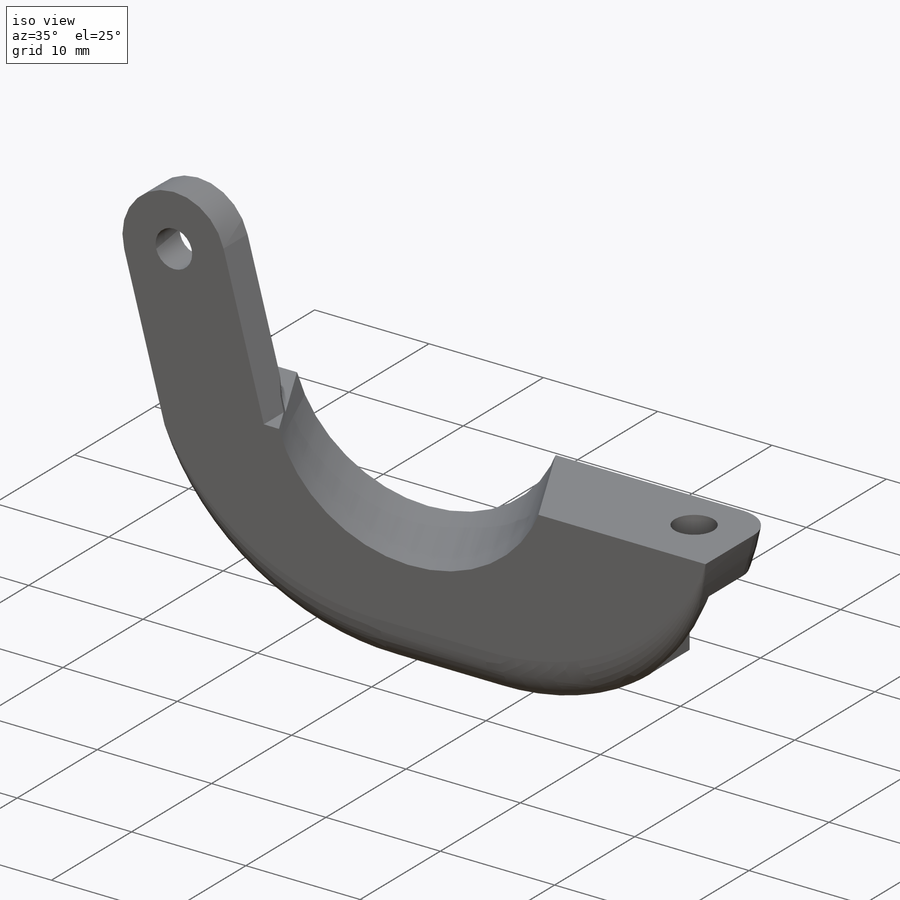
[diagram: iso view]
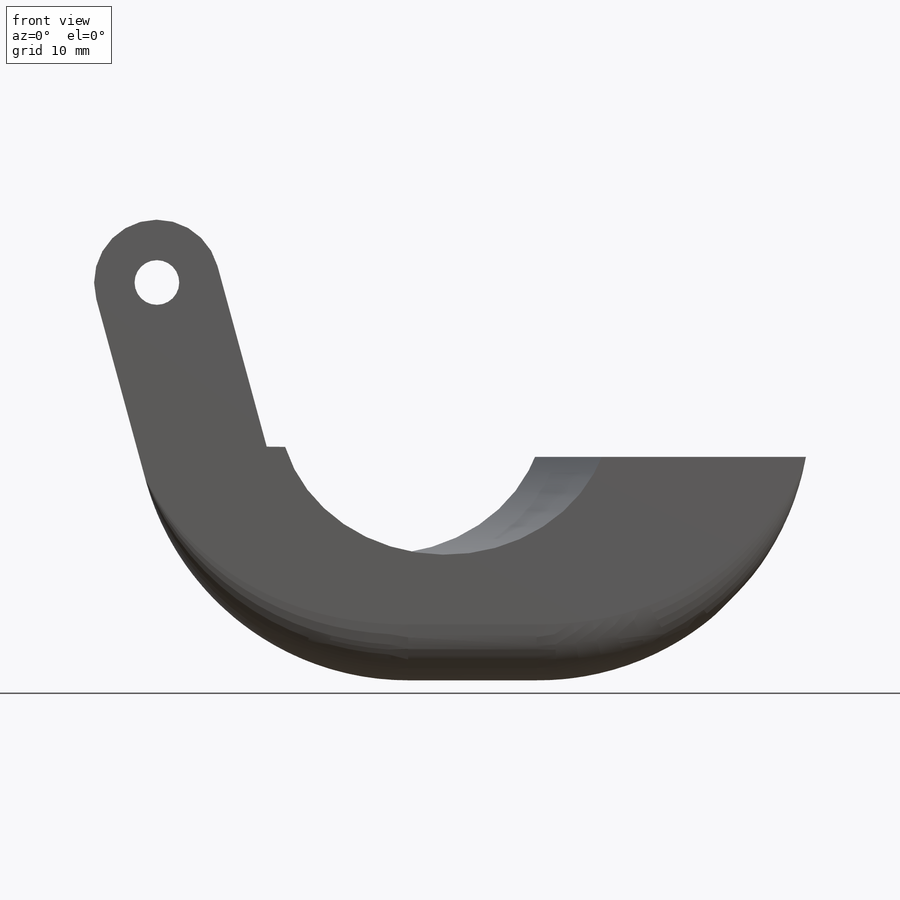
[diagram: front view]
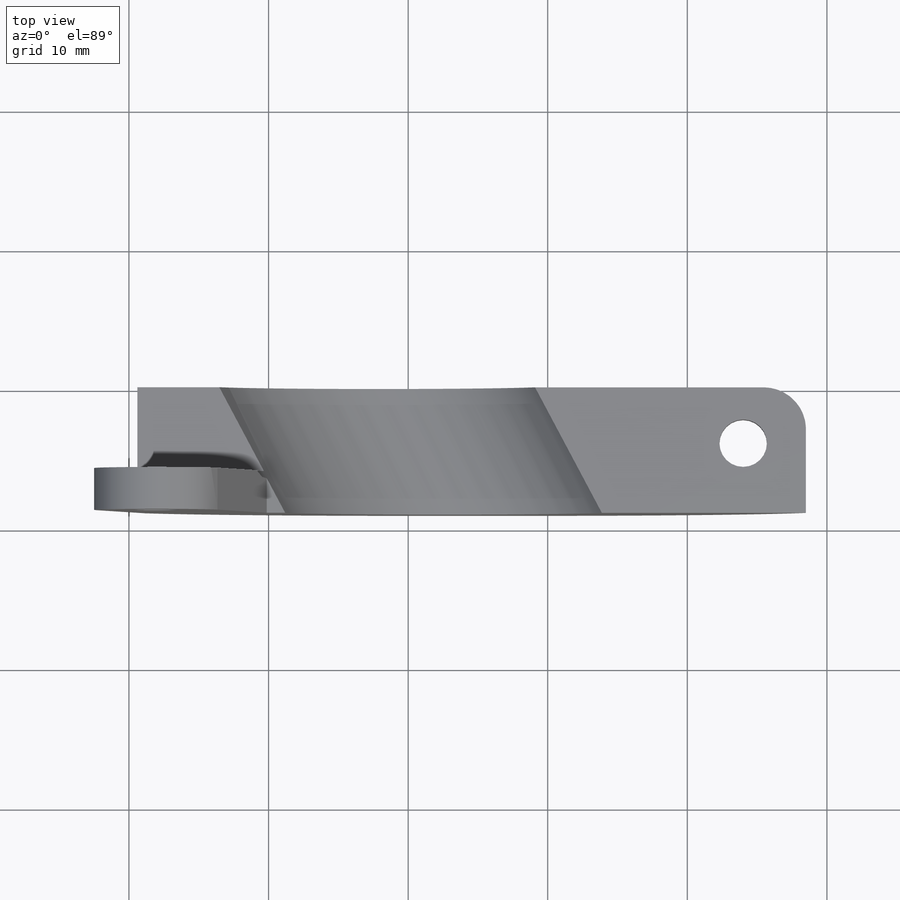
[diagram: top view]
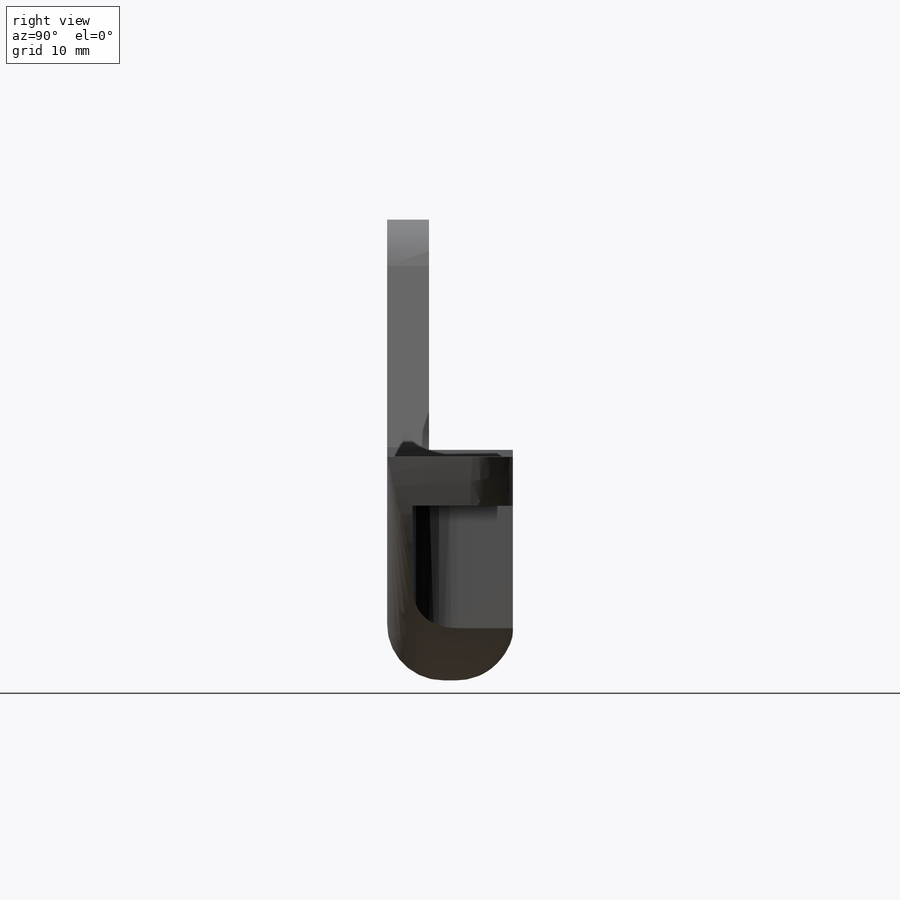
[diagram: right view]
SOLIDWORKS PART (.sldprt)
format: sldprt  version: not decoded by parser v0  size: 304,640 bytes
history: native  units: mm
features: sketch x7, cut_extrude x5, extrude x2, fillet x2, material x1, plane x1 (+12 scaffold rows collapsed)
feature tree (30):
  scaffold x12  (default folders/planes/origin — collapsed)
  material  "Material <not specified>"
  sketch  "Sketch1"  dims[D2=21.0mm D3=3.2mm D5=9.0mm D1=18.0mm D4=9.0mm D6=2.99mm D7=24.0mm]
  extrude  "Boss-Extrude1"  Depth=9mm
  sketch  "Sketch2"
  cut_extrude  "Cut-Extrude1"  Depth=3mm
  sketch  "Sketch3"  dims[D1=4.0mm D2=178.7mm D3=104.5mm D4=80.0mm D5=30.0mm D6=21.0mm]
  extrude  "Axis2"  [1 undecoded]
  plane  "Plane1"
  sketch  "Sketch4"  dims[D1=21.0mm]
  cut_extrude  "Cut-Extrude2"  [1 undecoded]
  sketch  "Sketch5"  dims[D2=3.4mm D1=24.0mm]
  cut_extrude  "Cut-Extrude3"  [1 undecoded]
  sketch  "Sketch6"  dims[D1=6.4mm]
  cut_extrude  "Cut-Extrude4"  Depth=4mm
  fillet  "Fillet1"  Radius=3mm
  sketch  "Sketch7"
  cut_extrude  "Cut-Extrude5"  Depth=0.5mm
  fillet  "VarFillet3"  Radius=4mm
decode coverage: 11 of 16 modeling features carry decoded parameters
note: 3 parameter values undecoded
summary: no parameter record found for 3 features
note: suppression state not decoded; provenance and decode notes live in map.json
